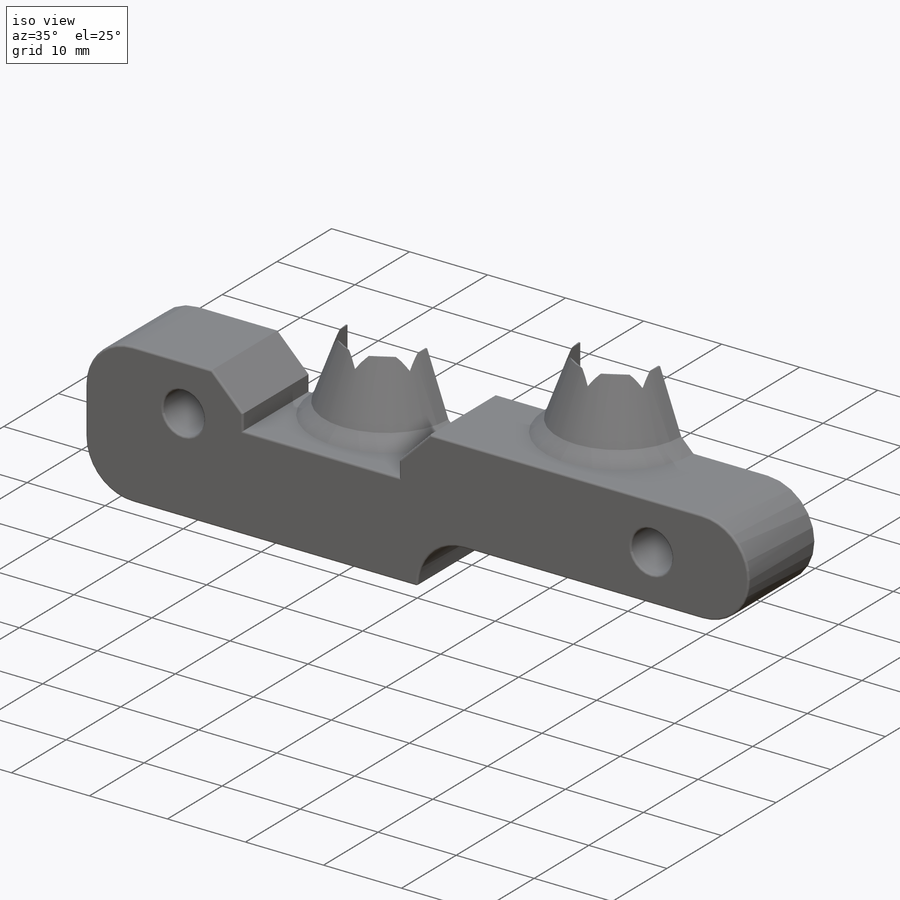
[diagram: iso view]
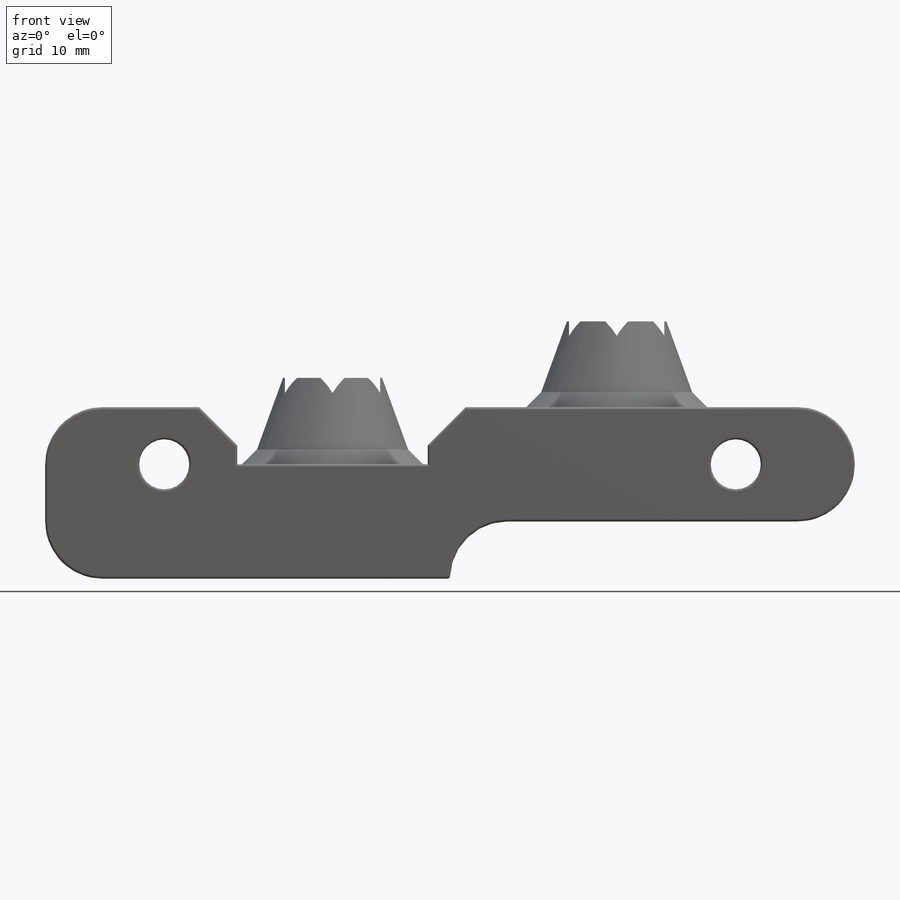
[diagram: front view]
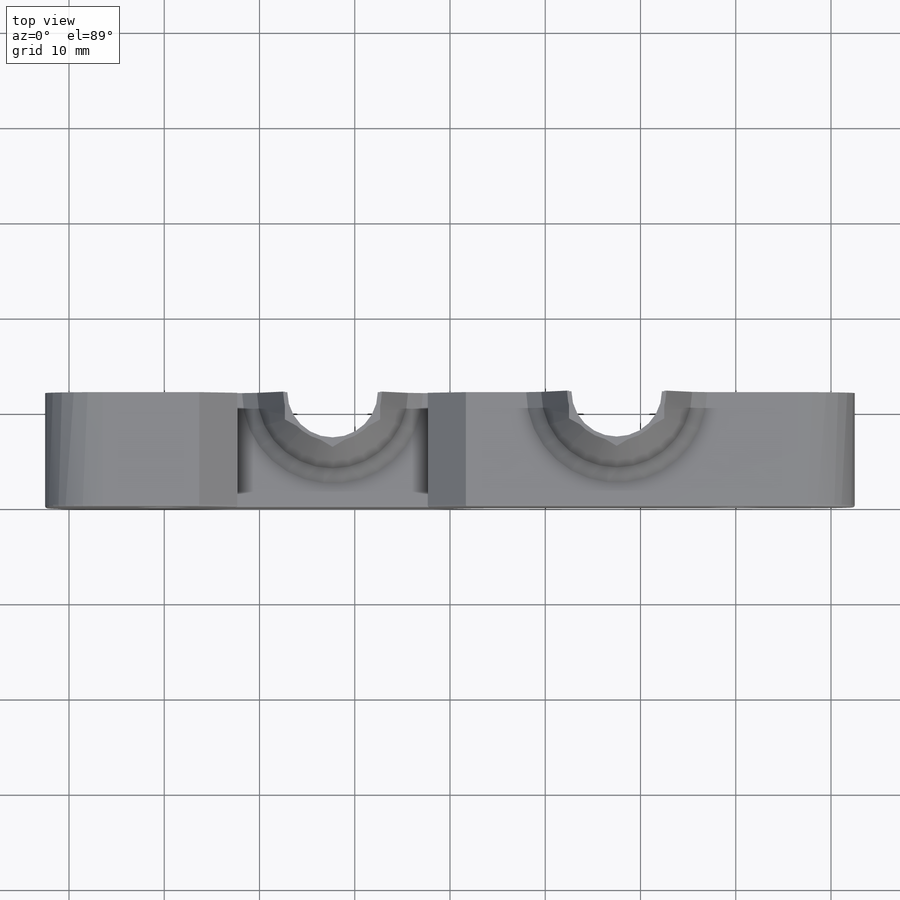
[diagram: top view]
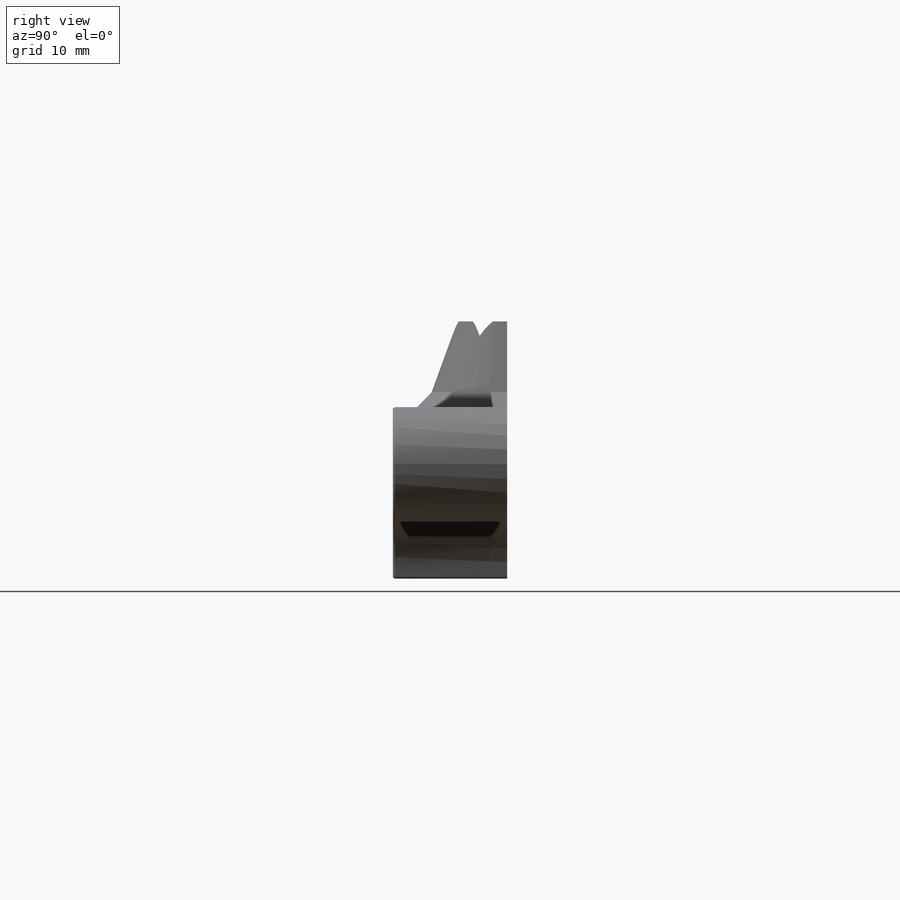
[diagram: right view]
SOLIDWORKS PART (.sldprt)
format: sldprt  version: not decoded by parser v0  size: 929,280 bytes
history: native  units: mm
features: sketch x21, cut_extrude x16, extrude x5, chamfer x4, fillet x4, material x1, mirror x1 (+13 scaffold rows collapsed)
feature tree (65):
  scaffold x13  (default folders/planes/origin — collapsed)
  material  "Material <not specified>"
  sketch  "Sketch1"  dims[D1=85.0mm D2=12.0mm]
  extrude  "Boss-Extrude1"  Depth=12mm
  sketch  "Sketch2"  dims[D1=16.0mm D2=16.0mm D3=25.0mm D4=25.0mm]
  cut_extrude  "Cut-Extrude2"  Depth=5mm
  sketch  "Sketch3"  dims[D1=16.0mm D2=16.0mm D3=25.0mm D4=25.0mm]
  cut_extrude  "Cut-Extrude3"  Depth=5mm
  sketch  "Sketch4"  dims[D1=12.0mm D2=12.0mm]
  cut_extrude  "Cut-Extrude4"  Depth=5mm
  sketch  "Sketch5"  dims[D3=5.25mm D4=5.25mm D1=12.5mm D2=12.5mm D5=60.0mm]
  cut_extrude  "Cut-Extrude6"  [1 undecoded]
  sketch  "Sketch7"  dims[D1=17.0mm D2=17.0mm]
  extrude  "Boss-Extrude3"  Depth=9mm
  chamfer  "Chamfer1"  Distance=1mm Angle=45deg
  chamfer  "Chamfer2"  Distance=1mm Angle=45deg
  sketch  "Sketch10"  dims[D1=10.0mm D2=10.0mm]
  cut_extrude  "Cut-Extrude9"  Depth=4mm
  sketch  "Sketch11"  dims[D1=9.5mm D2=9.5mm]
  cut_extrude  "Cut-Extrude10"  [1 undecoded]
  sketch  "Sketch12"
  cut_extrude  "Cut-Extrude11"  [1 undecoded]
  sketch  "Sketch13"
  extrude  "Boss-Extrude4"  [1 undecoded]
  sketch  "Sketch14"
  cut_extrude  "Cut-Extrude12"  [1 undecoded]
  sketch  "Sketch15"  dims[D1=85.0mm D2=42.5mm]
  extrude  "Boss-Extrude5"  Depth=6mm
  sketch  "Sketch17"  dims[D1=16.0mm]
  cut_extrude  "Cut-Extrude13"  Depth=5mm
  sketch  "Sketch18"  dims[D1=6.0mm D2=10.0mm]
  cut_extrude  "Cut-Extrude14"  [1 undecoded]
  sketch  "Sketch19"  dims[D1=16.0mm]
  cut_extrude  "Cut-Extrude15"  Depth=5mm
  sketch  "Sketch20"  dims[D1=12.0mm]
  cut_extrude  "Cut-Extrude16"  Depth=5mm
  fillet  "Fillet4"  Radius=6mm
  fillet  "Fillet5"  Radius=6mm
  sketch  "Sketch21"  dims[D1=17.0mm]
  extrude  "Boss-Extrude6"  Depth=10mm
  sketch  "Sketch22"  dims[D1=10.0mm]
  cut_extrude  "Cut-Extrude17"  Depth=4mm
  sketch  "Sketch23"  dims[D1=9.5mm]
  cut_extrude  "Cut-Extrude18"  [1 undecoded]
  chamfer  "Chamfer3"  Distance=1mm Angle=45deg
  sketch  "Sketch25"
  cut_extrude  "Cut-Extrude20"  [1 undecoded]
  chamfer  "Chamfer4"  Distance=4mm Angle=45deg
  sketch  "Sketch26"
  cut_extrude  "Cut-Extrude21"  [1 undecoded]
  fillet  "Fillet8"  Radius=0.25mm
  fillet  "Fillet9"  Radius=0.25mm
  mirror  "Mirror2"
decode coverage: 36 of 51 modeling features carry decoded parameters
note: 9 parameter values undecoded
summary: no parameter record found for 9 features
note: suppression state not decoded; provenance and decode notes live in map.json
